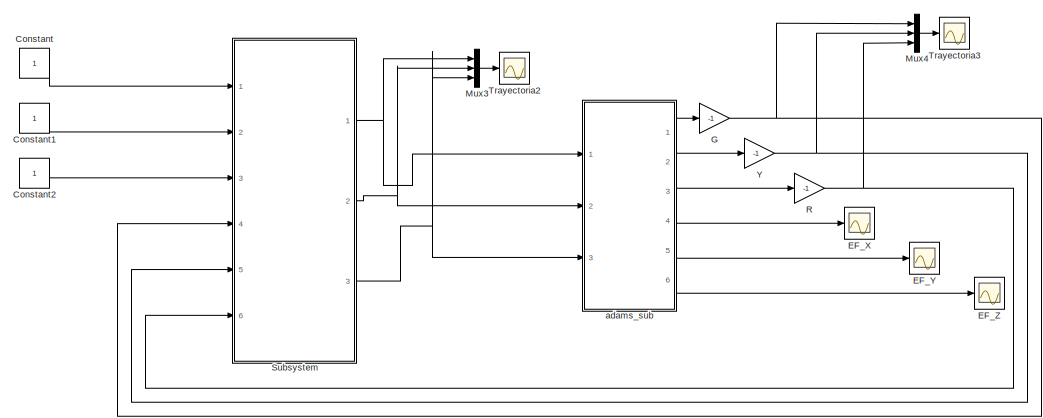
[diagram: root canvas - part 1/2, right side, full height]
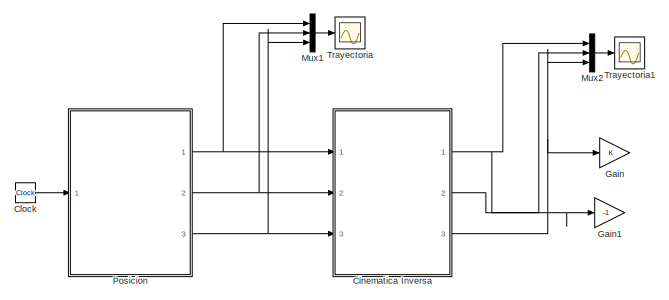
[diagram: root canvas - part 2/2, middle left region]
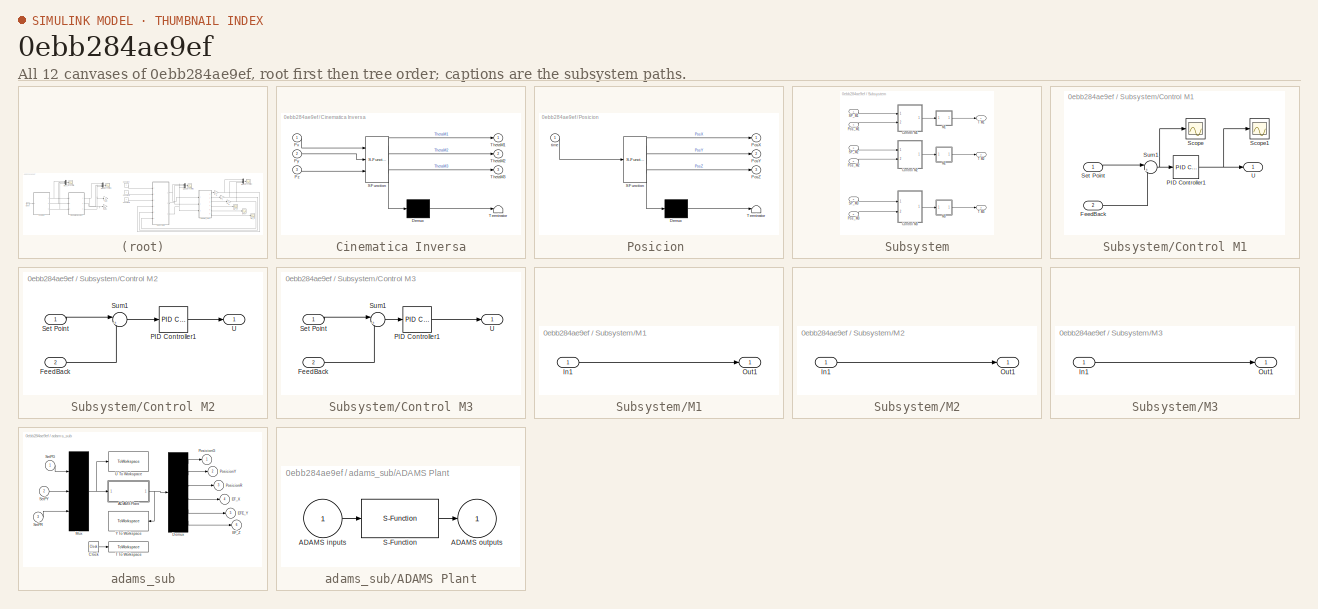
[diagram: thumbnail index - all 12 canvases of the model, root first then tree order]
MODEL slx_0ebb284ae9ef
KIND model
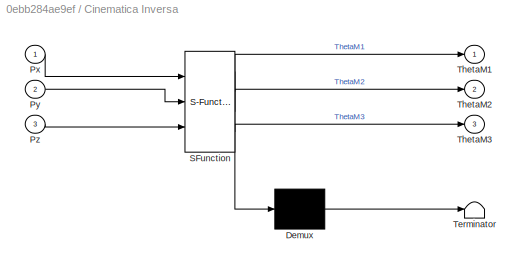
BLOCK [SubSystem] Cinematica Inversa
  ErrorFcn = Stateflow.Translate.translate
  PermitHierarchicalResolution = ExplicitOnly
  Ports = [3, 3]
  RequestExecContextInheritance = off
  SFBlockType = MATLAB Function
  TreatAsAtomicUnit = on
BLOCK [Demux] Cinematica Inversa/ Demux 
  Outputs = 1
  Ports = [1, 1]
BLOCK [S-Function] Cinematica Inversa/ SFunction 
  EnableBusSupport = on
  FunctionName = sf_sfun
  PortCounts = [3 4]
  Ports = [3, 4]
  Tag = Stateflow S-Function DeltaSM_Control 1
BLOCK [Terminator] Cinematica Inversa/ Terminator 
BLOCK [Inport] Cinematica Inversa/Px
  IconDisplay = Port number
BLOCK [Inport] Cinematica Inversa/Py
  IconDisplay = Port number
  Port = 2
BLOCK [Inport] Cinematica Inversa/Pz
  IconDisplay = Port number
  Port = 3
BLOCK [Outport] Cinematica Inversa/ThetaM1
  IconDisplay = Port number
BLOCK [Outport] Cinematica Inversa/ThetaM2
  IconDisplay = Port number
  Port = 2
BLOCK [Outport] Cinematica Inversa/ThetaM3
  IconDisplay = Port number
  Port = 3
BLOCK [Clock] Clock
  DisplayTime = on
BLOCK [Constant] Constant
BLOCK [Constant] Constant1
BLOCK [Constant] Constant2
BLOCK [Scope] EF_X
  Floating = off
  NumInputPorts = 1
  Ports = [1]
  SaveName = ScopeData7
  ShowLegends = off
  ZoomMode = yonly
BLOCK [Scope] EF_Y
  Floating = off
  NumInputPorts = 1
  Ports = [1]
  SaveName = ScopeData6
  ShowLegends = off
  ZoomMode = yonly
BLOCK [Scope] EF_Z
  Floating = off
  NumInputPorts = 1
  Ports = [1]
  SaveName = ScopeData5
  ShowLegends = off
  ZoomMode = yonly
BLOCK [Gain] G
  Gain = -1
  OutDataTypeStr = Inherit: Inherit via internal rule
  ParamDataTypeStr = Inherit: Inherit via internal rule
  SaturateOnIntegerOverflow = off
BLOCK [Gain] Gain
  OutDataTypeStr = Inherit: Inherit via internal rule
  ParamDataTypeStr = Inherit: Inherit via internal rule
  SaturateOnIntegerOverflow = off
BLOCK [Gain] Gain1
  Gain = -1
  OutDataTypeStr = Inherit: Inherit via internal rule
  ParamDataTypeStr = Inherit: Inherit via internal rule
  SaturateOnIntegerOverflow = off
BLOCK [Mux] Mux1
  DisplayOption = bar
  Inputs = 3
  Ports = [3, 1]
BLOCK [Mux] Mux2
  DisplayOption = bar
  Inputs = 3
  Ports = [3, 1]
BLOCK [Mux] Mux3
  DisplayOption = bar
  Inputs = 3
  Ports = [3, 1]
BLOCK [Mux] Mux4
  DisplayOption = bar
  Inputs = 3
  Ports = [3, 1]
BLOCK [SubSystem] Posicion 
  ErrorFcn = Stateflow.Translate.translate
  PermitHierarchicalResolution = ExplicitOnly
  Ports = [1, 3]
  RequestExecContextInheritance = off
  SFBlockType = MATLAB Function
  TreatAsAtomicUnit = on
BLOCK [Demux] Posicion / Demux 
  Outputs = 1
  Ports = [1, 1]
BLOCK [S-Function] Posicion / SFunction 
  EnableBusSupport = on
  FunctionName = sf_sfun
  PortCounts = [1 4]
  Ports = [1, 4]
  Tag = Stateflow S-Function DeltaSM_Control 2
BLOCK [Terminator] Posicion / Terminator 
BLOCK [Outport] Posicion /PosX
  IconDisplay = Port number
BLOCK [Outport] Posicion /PosY
  IconDisplay = Port number
  Port = 2
BLOCK [Outport] Posicion /PosZ
  IconDisplay = Port number
  Port = 3
BLOCK [Inport] Posicion /time
  IconDisplay = Port number
BLOCK [Gain] R
  Gain = -1
  OutDataTypeStr = Inherit: Inherit via internal rule
  ParamDataTypeStr = Inherit: Inherit via internal rule
  SaturateOnIntegerOverflow = off
BLOCK [SubSystem] Subsystem
  Ports = [6, 3]
  RequestExecContextInheritance = off
BLOCK [SubSystem] Subsystem/Control M1
  Ports = [2, 1]
  RequestExecContextInheritance = off
BLOCK [Inport] Subsystem/Control M1/FeedBack
  IconDisplay = Port number
  Port = 2
BLOCK [Reference] Subsystem/Control M1/PID Controller1  REF=simulink/Continuous/PID Controller
  AntiWindupMode = none
  Controller = PID
  D = 0.0343498088159547
  DOutDataTypeStr = Inherit: Inherit via internal rule
  DOutMax = []
  DOutMin = []
  DParamDataTypeStr = Inherit: Inherit via internal rule
  DParamMax = []
  DParamMin = []
  ExternalReset = none
  FilterContinuousStateAttributes = ''
  FilterMethod = Forward Euler
  FilterOutDataTypeStr = Inherit: Inherit via internal rule
  FilterOutMax = []
  FilterOutMin = []
  FilterRTWStateStorageClass = Auto
  FilterStateMustResolveToSignalObject = off
  Form = Parallel
  I = 0.8774748498383154
  IOutDataTypeStr = Inherit: Inherit via internal rule
  IOutMax = []
  IOutMin = []
  IParamDataTypeStr = Inherit: Inherit via internal rule
  IParamMax = []
  IParamMin = []
  IgnoreLimit = off
  InitialConditionForFilter = 0
  InitialConditionForIntegrator = 0
  InitialConditionSource = internal
  IntegratorContinuousStateAttributes = ''
  IntegratorMethod = Forward Euler
  IntegratorOutDataTypeStr = Inherit: Inherit via internal rule
  IntegratorOutMax = []
  IntegratorOutMin = []
  IntegratorRTWStateStorageClass = Auto
  IntegratorStateMustResolveToSignalObject = off
  Kb = 1
  KbOutDataTypeStr = Inherit: Inherit via internal rule
  KbOutMax = []
  KbOutMin = []
  KbParamDataTypeStr = Inherit: Inherit via internal rule
  KbParamMax = []
  KbParamMin = []
  Kt = 1
  KtOutDataTypeStr = Inherit: Inherit via internal rule
  KtOutMax = []
  KtOutMin = []
  KtParamDataTypeStr = Inherit: Inherit via internal rule
  KtParamMax = []
  KtParamMin = []
  LimitOutput = on
  LinearizeAsGain = on
  LockScale = off
  LowerSaturationLimit = -7
  N = 122.181412207295
  NOutDataTypeStr = Inherit: Inherit via internal rule
  NOutMax = []
  NOutMin = []
  NParamDataTypeStr = Inherit: Inherit via internal rule
  NParamMax = []
  NParamMin = []
  P = 0.571210221727402
  POutDataTypeStr = Inherit: Inherit via internal rule
  POutMax = []
  POutMin = []
  PParamDataTypeStr = Inherit: Inherit via internal rule
  PParamMax = []
  PParamMin = []
  Ports = [1, 1]
  RndMeth = Floor
  SampleTime = 1
  SaturateOnIntegerOverflow = off
  SaturationOutDataTypeStr = Inherit: Same as input
  SaturationOutMax = []
  SaturationOutMin = []
  SourceBlock = simulink/Continuous/PID Controller
  SourceType = PID 1dof
  SumAccumDataTypeStr = Inherit: Inherit via internal rule
  SumDAccumDataTypeStr = Inherit: Inherit via internal rule
  SumDOutDataTypeStr = Inherit: Inherit via internal rule
  SumDOutMax = []
  SumDOutMin = []
  SumI1AccumDataTypeStr = Inherit: Inherit via internal rule
  SumI1OutDataTypeStr = Inherit: Inherit via internal rule
  SumI1OutMax = []
  SumI1OutMin = []
  SumI2AccumDataTypeStr = Inherit: Inherit via internal rule
  SumI2OutDataTypeStr = Inherit: Inherit via internal rule
  SumI2OutMax = []
  SumI2OutMin = []
  SumI3AccumDataTypeStr = Inherit: Inherit via internal rule
  SumI3OutDataTypeStr = Inherit: Inherit via internal rule
  SumI3OutMax = []
  SumI3OutMin = []
  SumOutDataTypeStr = Inherit: Inherit via internal rule
  SumOutMax = []
  SumOutMin = []
  TimeDomain = Continuous-time
  TrackingMode = off
  UpperSaturationLimit = 7
  ZeroCross = on
BLOCK [Scope] Subsystem/Control M1/Scope
  Floating = off
  NumInputPorts = 1
  Ports = [1]
  ShowLegends = off
BLOCK [Scope] Subsystem/Control M1/Scope1
  Floating = off
  NumInputPorts = 1
  Ports = [1]
  SaveName = ScopeData2
  ShowLegends = off
BLOCK [Inport] Subsystem/Control M1/Set Point
  IconDisplay = Port number
BLOCK [Sum] Subsystem/Control M1/Sum1
  IconShape = round
  InputSameDT = off
  Inputs = |+-
  OutDataTypeStr = Inherit: Inherit via internal rule
  Ports = [2, 1]
  SaturateOnIntegerOverflow = off
BLOCK [Outport] Subsystem/Control M1/U
  IconDisplay = Port number
BLOCK [SubSystem] Subsystem/Control M2
  Ports = [2, 1]
  RequestExecContextInheritance = off
BLOCK [Inport] Subsystem/Control M2/FeedBack
  IconDisplay = Port number
  Port = 2
BLOCK [Reference] Subsystem/Control M2/PID Controller1  REF=simulink/Continuous/PID Controller
  AntiWindupMode = none
  Controller = PID
  D = 0.0343498088159547
  DOutDataTypeStr = Inherit: Inherit via internal rule
  DOutMax = []
  DOutMin = []
  DParamDataTypeStr = Inherit: Inherit via internal rule
  DParamMax = []
  DParamMin = []
  ExternalReset = none
  FilterContinuousStateAttributes = ''
  FilterMethod = Forward Euler
  FilterOutDataTypeStr = Inherit: Inherit via internal rule
  FilterOutMax = []
  FilterOutMin = []
  FilterRTWStateStorageClass = Auto
  FilterStateMustResolveToSignalObject = off
  Form = Parallel
  I = 0.8774748498383154
  IOutDataTypeStr = Inherit: Inherit via internal rule
  IOutMax = []
  IOutMin = []
  IParamDataTypeStr = Inherit: Inherit via internal rule
  IParamMax = []
  IParamMin = []
  IgnoreLimit = off
  InitialConditionForFilter = 0
  InitialConditionForIntegrator = 0
  InitialConditionSource = internal
  IntegratorContinuousStateAttributes = ''
  IntegratorMethod = Forward Euler
  IntegratorOutDataTypeStr = Inherit: Inherit via internal rule
  IntegratorOutMax = []
  IntegratorOutMin = []
  IntegratorRTWStateStorageClass = Auto
  IntegratorStateMustResolveToSignalObject = off
  Kb = 1
  KbOutDataTypeStr = Inherit: Inherit via internal rule
  KbOutMax = []
  KbOutMin = []
  KbParamDataTypeStr = Inherit: Inherit via internal rule
  KbParamMax = []
  KbParamMin = []
  Kt = 1
  KtOutDataTypeStr = Inherit: Inherit via internal rule
  KtOutMax = []
  KtOutMin = []
  KtParamDataTypeStr = Inherit: Inherit via internal rule
  KtParamMax = []
  KtParamMin = []
  LimitOutput = on
  LinearizeAsGain = on
  LockScale = off
  LowerSaturationLimit = -7
  N = 122.181412207295
  NOutDataTypeStr = Inherit: Inherit via internal rule
  NOutMax = []
  NOutMin = []
  NParamDataTypeStr = Inherit: Inherit via internal rule
  NParamMax = []
  NParamMin = []
  P = 0.571210221727402
  POutDataTypeStr = Inherit: Inherit via internal rule
  POutMax = []
  POutMin = []
  PParamDataTypeStr = Inherit: Inherit via internal rule
  PParamMax = []
  PParamMin = []
  Ports = [1, 1]
  RndMeth = Floor
  SampleTime = 1
  SaturateOnIntegerOverflow = off
  SaturationOutDataTypeStr = Inherit: Same as input
  SaturationOutMax = []
  SaturationOutMin = []
  SourceBlock = simulink/Continuous/PID Controller
  SourceType = PID 1dof
  SumAccumDataTypeStr = Inherit: Inherit via internal rule
  SumDAccumDataTypeStr = Inherit: Inherit via internal rule
  SumDOutDataTypeStr = Inherit: Inherit via internal rule
  SumDOutMax = []
  SumDOutMin = []
  SumI1AccumDataTypeStr = Inherit: Inherit via internal rule
  SumI1OutDataTypeStr = Inherit: Inherit via internal rule
  SumI1OutMax = []
  SumI1OutMin = []
  SumI2AccumDataTypeStr = Inherit: Inherit via internal rule
  SumI2OutDataTypeStr = Inherit: Inherit via internal rule
  SumI2OutMax = []
  SumI2OutMin = []
  SumI3AccumDataTypeStr = Inherit: Inherit via internal rule
  SumI3OutDataTypeStr = Inherit: Inherit via internal rule
  SumI3OutMax = []
  SumI3OutMin = []
  SumOutDataTypeStr = Inherit: Inherit via internal rule
  SumOutMax = []
  SumOutMin = []
  TimeDomain = Continuous-time
  TrackingMode = off
  UpperSaturationLimit = 7
  ZeroCross = on
BLOCK [Inport] Subsystem/Control M2/Set Point
  IconDisplay = Port number
BLOCK [Sum] Subsystem/Control M2/Sum1
  IconShape = round
  InputSameDT = off
  Inputs = |+-
  OutDataTypeStr = Inherit: Inherit via internal rule
  Ports = [2, 1]
  SaturateOnIntegerOverflow = off
BLOCK [Outport] Subsystem/Control M2/U
  IconDisplay = Port number
BLOCK [SubSystem] Subsystem/Control M3
  Ports = [2, 1]
  RequestExecContextInheritance = off
BLOCK [Inport] Subsystem/Control M3/FeedBack
  IconDisplay = Port number
  Port = 2
BLOCK [Reference] Subsystem/Control M3/PID Controller1  REF=simulink/Continuous/PID Controller
  AntiWindupMode = none
  Controller = PID
  D = 0.0343498088159547
  DOutDataTypeStr = Inherit: Inherit via internal rule
  DOutMax = []
  DOutMin = []
  DParamDataTypeStr = Inherit: Inherit via internal rule
  DParamMax = []
  DParamMin = []
  ExternalReset = none
  FilterContinuousStateAttributes = ''
  FilterMethod = Forward Euler
  FilterOutDataTypeStr = Inherit: Inherit via internal rule
  FilterOutMax = []
  FilterOutMin = []
  FilterRTWStateStorageClass = Auto
  FilterStateMustResolveToSignalObject = off
  Form = Parallel
  I = 0.8774748498383154
  IOutDataTypeStr = Inherit: Inherit via internal rule
  IOutMax = []
  IOutMin = []
  IParamDataTypeStr = Inherit: Inherit via internal rule
  IParamMax = []
  IParamMin = []
  IgnoreLimit = off
  InitialConditionForFilter = 0
  InitialConditionForIntegrator = 0
  InitialConditionSource = internal
  IntegratorContinuousStateAttributes = ''
  IntegratorMethod = Forward Euler
  IntegratorOutDataTypeStr = Inherit: Inherit via internal rule
  IntegratorOutMax = []
  IntegratorOutMin = []
  IntegratorRTWStateStorageClass = Auto
  IntegratorStateMustResolveToSignalObject = off
  Kb = 1
  KbOutDataTypeStr = Inherit: Inherit via internal rule
  KbOutMax = []
  KbOutMin = []
  KbParamDataTypeStr = Inherit: Inherit via internal rule
  KbParamMax = []
  KbParamMin = []
  Kt = 1
  KtOutDataTypeStr = Inherit: Inherit via internal rule
  KtOutMax = []
  KtOutMin = []
  KtParamDataTypeStr = Inherit: Inherit via internal rule
  KtParamMax = []
  KtParamMin = []
  LimitOutput = on
  LinearizeAsGain = on
  LockScale = off
  LowerSaturationLimit = -7
  N = 122.181412207295
  NOutDataTypeStr = Inherit: Inherit via internal rule
  NOutMax = []
  NOutMin = []
  NParamDataTypeStr = Inherit: Inherit via internal rule
  NParamMax = []
  NParamMin = []
  P = 0.571210221727402
  POutDataTypeStr = Inherit: Inherit via internal rule
  POutMax = []
  POutMin = []
  PParamDataTypeStr = Inherit: Inherit via internal rule
  PParamMax = []
  PParamMin = []
  Ports = [1, 1]
  RndMeth = Floor
  SampleTime = 1
  SaturateOnIntegerOverflow = off
  SaturationOutDataTypeStr = Inherit: Same as input
  SaturationOutMax = []
  SaturationOutMin = []
  SourceBlock = simulink/Continuous/PID Controller
  SourceType = PID 1dof
  SumAccumDataTypeStr = Inherit: Inherit via internal rule
  SumDAccumDataTypeStr = Inherit: Inherit via internal rule
  SumDOutDataTypeStr = Inherit: Inherit via internal rule
  SumDOutMax = []
  SumDOutMin = []
  SumI1AccumDataTypeStr = Inherit: Inherit via internal rule
  SumI1OutDataTypeStr = Inherit: Inherit via internal rule
  SumI1OutMax = []
  SumI1OutMin = []
  SumI2AccumDataTypeStr = Inherit: Inherit via internal rule
  SumI2OutDataTypeStr = Inherit: Inherit via internal rule
  SumI2OutMax = []
  SumI2OutMin = []
  SumI3AccumDataTypeStr = Inherit: Inherit via internal rule
  SumI3OutDataTypeStr = Inherit: Inherit via internal rule
  SumI3OutMax = []
  SumI3OutMin = []
  SumOutDataTypeStr = Inherit: Inherit via internal rule
  SumOutMax = []
  SumOutMin = []
  TimeDomain = Continuous-time
  TrackingMode = off
  UpperSaturationLimit = 7
  ZeroCross = on
BLOCK [Inport] Subsystem/Control M3/Set Point
  IconDisplay = Port number
BLOCK [Sum] Subsystem/Control M3/Sum1
  IconShape = round
  InputSameDT = off
  Inputs = |+-
  OutDataTypeStr = Inherit: Inherit via internal rule
  Ports = [2, 1]
  SaturateOnIntegerOverflow = off
BLOCK [Outport] Subsystem/Control M3/U
  IconDisplay = Port number
BLOCK [SubSystem] Subsystem/M1
  Ports = [1, 1]
  RequestExecContextInheritance = off
BLOCK [Inport] Subsystem/M1/In1
  IconDisplay = Port number
BLOCK [Outport] Subsystem/M1/Out1
  IconDisplay = Port number
BLOCK [SubSystem] Subsystem/M2
  Ports = [1, 1]
  RequestExecContextInheritance = off
BLOCK [Inport] Subsystem/M2/In1
  IconDisplay = Port number
BLOCK [Outport] Subsystem/M2/Out1
  IconDisplay = Port number
BLOCK [SubSystem] Subsystem/M3
  Ports = [1, 1]
  RequestExecContextInheritance = off
BLOCK [Inport] Subsystem/M3/In1
  IconDisplay = Port number
BLOCK [Outport] Subsystem/M3/Out1
  IconDisplay = Port number
BLOCK [Inport] Subsystem/Pos_M1
  IconDisplay = Port number
  Port = 4
BLOCK [Inport] Subsystem/Pos_M2
  IconDisplay = Port number
  Port = 5
BLOCK [Inport] Subsystem/Pos_M3
  IconDisplay = Port number
  Port = 6
BLOCK [Inport] Subsystem/SP_M1
  IconDisplay = Port number
BLOCK [Inport] Subsystem/SP_M2
  IconDisplay = Port number
  Port = 2
BLOCK [Inport] Subsystem/SP_M3
  IconDisplay = Port number
  Port = 3
BLOCK [Outport] Subsystem/T M1
  IconDisplay = Port number
BLOCK [Outport] Subsystem/T M2
  IconDisplay = Port number
  Port = 2
BLOCK [Outport] Subsystem/T M3
  IconDisplay = Port number
  Port = 3
BLOCK [Scope] Trayectoria
  Floating = off
  NumInputPorts = 1
  Ports = [1]
  SaveName = ScopeData3
  ShowLegends = off
  ZoomMode = yonly
BLOCK [Scope] Trayectoria1
  Floating = off
  NumInputPorts = 1
  Ports = [1]
  SaveName = ScopeData4
  ShowLegends = off
  ZoomMode = yonly
BLOCK [Scope] Trayectoria2
  Floating = off
  NumInputPorts = 1
  Ports = [1]
  SaveName = ScopeData1
  ShowLegends = off
  YMax = 0.66
  YMin = 0.47
  ZoomMode = yonly
BLOCK [Scope] Trayectoria3
  Floating = off
  NumInputPorts = 1
  Ports = [1]
  SaveName = ScopeData8
  ShowLegends = off
  ZoomMode = yonly
BLOCK [Gain] Y
  Gain = -1
  OutDataTypeStr = Inherit: Inherit via internal rule
  ParamDataTypeStr = Inherit: Inherit via internal rule
  SaturateOnIntegerOverflow = off
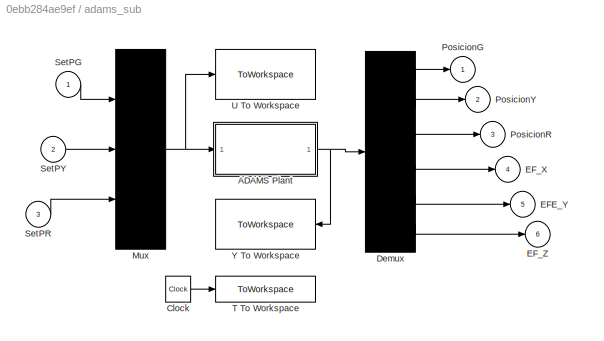
BLOCK [SubSystem] adams_sub
  Ports = [3, 6]
  RequestExecContextInheritance = off
  ShowPortLabels = none
BLOCK [SubSystem] adams_sub/ADAMS Plant
  InitFcn = clear mex
  LoadFcn = %check based on dialog box setting for when setting by popup menu                                             \nif exist('ADAMS_solver_type')                                                                                 \n  if strcmp(ADAMS_solver_type,'C++')                                                                          \n    set_param(gcb,'exetyp','C++');                                 ...<+3488ch>
  OpenFcn = open_system(gcb,'mask')                                                                                                                          \nif not(exist('set_some_params_states'))                                                                                                          \n                                                                                                            ...<+625ch>
  Ports = [1, 1]
  RequestExecContextInheritance = off
BLOCK [Inport] adams_sub/ADAMS Plant/ADAMS inputs
  IconDisplay = Port number
BLOCK [Outport] adams_sub/ADAMS Plant/ADAMS outputs
  IconDisplay = Port number
  InitialOutput = 0
BLOCK [S-Function] adams_sub/ADAMS Plant/S-Function
  EnableBusSupport = off
  FunctionName = adams_plant
  Parameters = exevie,exesol,stat,outfil,nampre,o_rate,nam_in,namout,dft,modsim,modani,dt_out,inicmd,exetyp,comtyp,ada_host, workdir,pin_interp_order,pout_extrap_order,pin_extrap_order,pout_interp_order,simulink_lead_cosim
  Ports = [1, 1]
  StopFcn = clear mex
BLOCK [Clock] adams_sub/Clock
BLOCK [Demux] adams_sub/Demux
  Outputs = 6
  Ports = [1, 6]
BLOCK [Outport] adams_sub/EFE_Y    
  IconDisplay = Port number
  Port = 5
BLOCK [Outport] adams_sub/EF_X     
  IconDisplay = Port number
  Port = 4
BLOCK [Outport] adams_sub/EF_Z     
  IconDisplay = Port number
  Port = 6
BLOCK [Mux] adams_sub/Mux
  Inputs = 3
  Ports = [3, 1]
BLOCK [Outport] adams_sub/PosicionG
  IconDisplay = Port number
BLOCK [Outport] adams_sub/PosicionR
  IconDisplay = Port number
  Port = 3
BLOCK [Outport] adams_sub/PosicionY
  IconDisplay = Port number
  Port = 2
BLOCK [Inport] adams_sub/SetPG
  IconDisplay = Port number
BLOCK [Inport] adams_sub/SetPR
  IconDisplay = Port number
  Port = 3
BLOCK [Inport] adams_sub/SetPY
  IconDisplay = Port number
  Port = 2
BLOCK [ToWorkspace] adams_sub/T To Workspace
  MaxDataPoints = 100000
  Ports = [1]
  VariableName = ADAMS_tout
BLOCK [ToWorkspace] adams_sub/U To Workspace
  MaxDataPoints = 100000
  Ports = [1]
  VariableName = ADAMS_uout
BLOCK [ToWorkspace] adams_sub/Y To Workspace
  MaxDataPoints = 100000
  Ports = [1]
  VariableName = ADAMS_yout
NET Cinematica Inversa:1 -> Gain1:1, Mux2:1
LINE Cinematica Inversa:2 -> Mux2:2
NET Cinematica Inversa:3 -> Gain:1, Mux2:3
LINE Clock:1 -> Posicion :1
LINE Constant1:1 -> Subsystem:2
LINE Constant2:1 -> Subsystem:3
LINE Constant:1 -> Subsystem:1
NET G:1 -> Mux4:1, Subsystem:4
LINE Mux1:1 -> Trayectoria:1
LINE Mux2:1 -> Trayectoria1:1
LINE Mux3:1 -> Trayectoria2:1
LINE Mux4:1 -> Trayectoria3:1
NET Posicion :1 -> Cinematica Inversa:1, Mux1:1
NET Posicion :2 -> Cinematica Inversa:2, Mux1:2
NET Posicion :3 -> Cinematica Inversa:3, Mux1:3
NET R:1 -> Mux4:3, Subsystem:6
LINE Subsystem/Control M1/FeedBack:1 -> Subsystem/Control M1/Sum1:2
NET Subsystem/Control M1/PID Controller1:1 -> Subsystem/Control M1/Scope1:1, Subsystem/Control M1/U:1
LINE Subsystem/Control M1/Set Point:1 -> Subsystem/Control M1/Sum1:1
NET Subsystem/Control M1/Sum1:1 -> Subsystem/Control M1/PID Controller1:1, Subsystem/Control M1/Scope:1
LINE Subsystem/Control M1:1 -> Subsystem/M1:1
LINE Subsystem/Control M2/FeedBack:1 -> Subsystem/Control M2/Sum1:2
LINE Subsystem/Control M2/PID Controller1:1 -> Subsystem/Control M2/U:1
LINE Subsystem/Control M2/Set Point:1 -> Subsystem/Control M2/Sum1:1
LINE Subsystem/Control M2/Sum1:1 -> Subsystem/Control M2/PID Controller1:1
LINE Subsystem/Control M2:1 -> Subsystem/M2:1
LINE Subsystem/Control M3/FeedBack:1 -> Subsystem/Control M3/Sum1:2
LINE Subsystem/Control M3/PID Controller1:1 -> Subsystem/Control M3/U:1
LINE Subsystem/Control M3/Set Point:1 -> Subsystem/Control M3/Sum1:1
LINE Subsystem/Control M3/Sum1:1 -> Subsystem/Control M3/PID Controller1:1
LINE Subsystem/Control M3:1 -> Subsystem/M3:1
LINE Subsystem/M1/In1:1 -> Subsystem/M1/Out1:1
LINE Subsystem/M1:1 -> Subsystem/T M1:1
LINE Subsystem/M2/In1:1 -> Subsystem/M2/Out1:1
LINE Subsystem/M2:1 -> Subsystem/T M2:1
LINE Subsystem/M3/In1:1 -> Subsystem/M3/Out1:1
LINE Subsystem/M3:1 -> Subsystem/T M3:1
LINE Subsystem/Pos_M1:1 -> Subsystem/Control M1:2
LINE Subsystem/Pos_M2:1 -> Subsystem/Control M2:2
LINE Subsystem/Pos_M3:1 -> Subsystem/Control M3:2
LINE Subsystem/SP_M1:1 -> Subsystem/Control M1:1
LINE Subsystem/SP_M2:1 -> Subsystem/Control M2:1
LINE Subsystem/SP_M3:1 -> Subsystem/Control M3:1
NET Subsystem:1 -> Mux3:1, adams_sub:1
NET Subsystem:2 -> Mux3:2, adams_sub:2
NET Subsystem:3 -> Mux3:3, adams_sub:3
NET Y:1 -> Mux4:2, Subsystem:5
LINE adams_sub/ADAMS Plant/ADAMS inputs:1 -> adams_sub/ADAMS Plant/S-Function:1
LINE adams_sub/ADAMS Plant/S-Function:1 -> adams_sub/ADAMS Plant/ADAMS outputs:1
NET adams_sub/ADAMS Plant:1 -> adams_sub/Demux:1, adams_sub/Y To Workspace:1
LINE adams_sub/Clock:1 -> adams_sub/T To Workspace:1
LINE adams_sub/Demux:1 -> adams_sub/PosicionG:1
LINE adams_sub/Demux:2 -> adams_sub/PosicionY:1
LINE adams_sub/Demux:3 -> adams_sub/PosicionR:1
LINE adams_sub/Demux:4 -> adams_sub/EF_X     :1
LINE adams_sub/Demux:5 -> adams_sub/EFE_Y    :1
LINE adams_sub/Demux:6 -> adams_sub/EF_Z     :1
NET adams_sub/Mux:1 -> adams_sub/ADAMS Plant:1, adams_sub/U To Workspace:1
LINE adams_sub/SetPG:1 -> adams_sub/Mux:1
LINE adams_sub/SetPR:1 -> adams_sub/Mux:3
LINE adams_sub/SetPY:1 -> adams_sub/Mux:2
LINE adams_sub:1 -> G:1
LINE adams_sub:2 -> Y:1
LINE adams_sub:3 -> R:1
LINE adams_sub:4 -> EF_X:1
LINE adams_sub:5 -> EF_Y:1
LINE adams_sub:6 -> EF_Z:1
note: NET lines group one-source signal fan-out (src -> all destinations, sorted); 1:1 wires keep LINE
